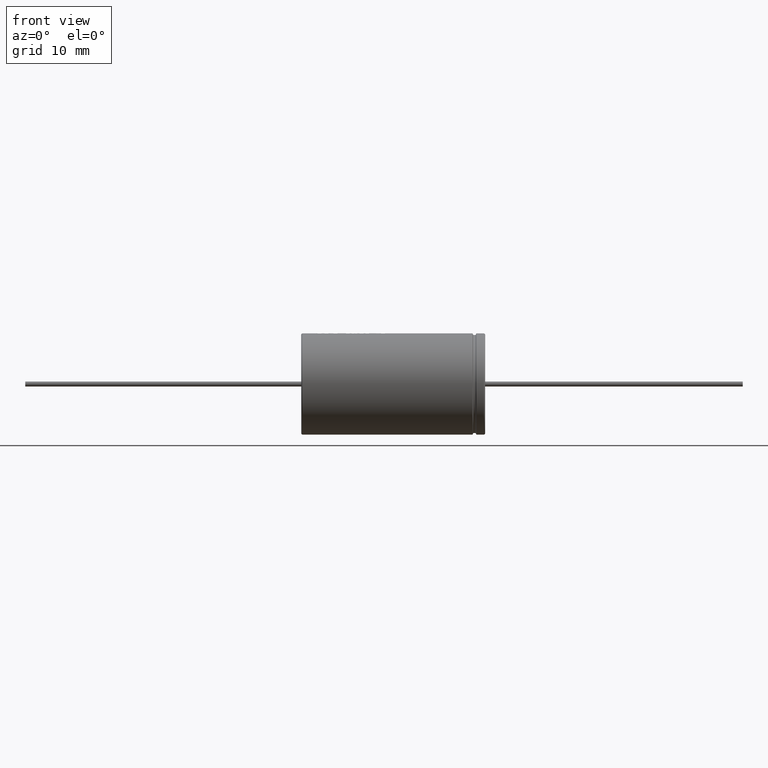
[diagram: clean part render]
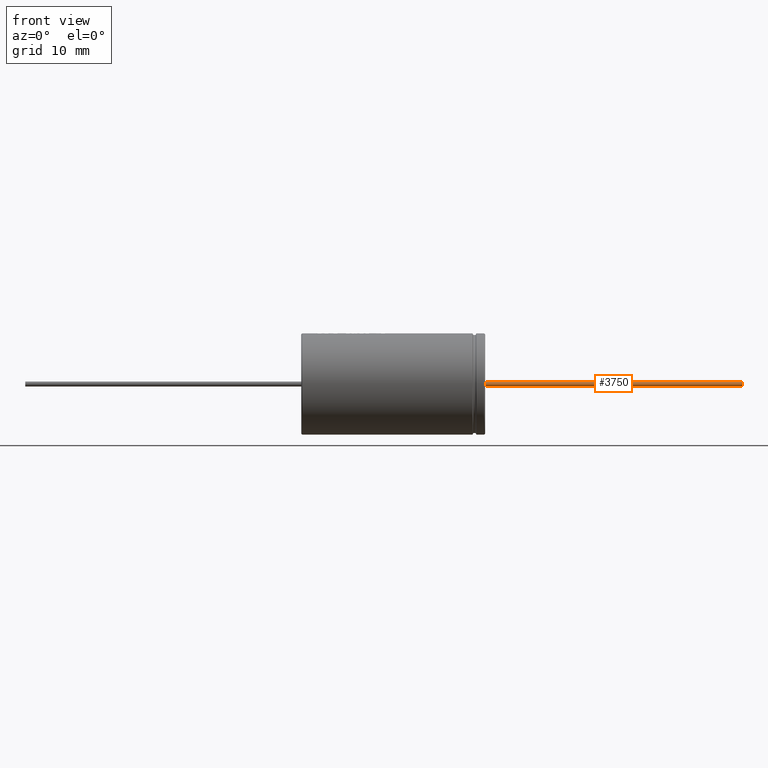
[diagram: same view with one face highlighted and labeled with its STEP entity id]
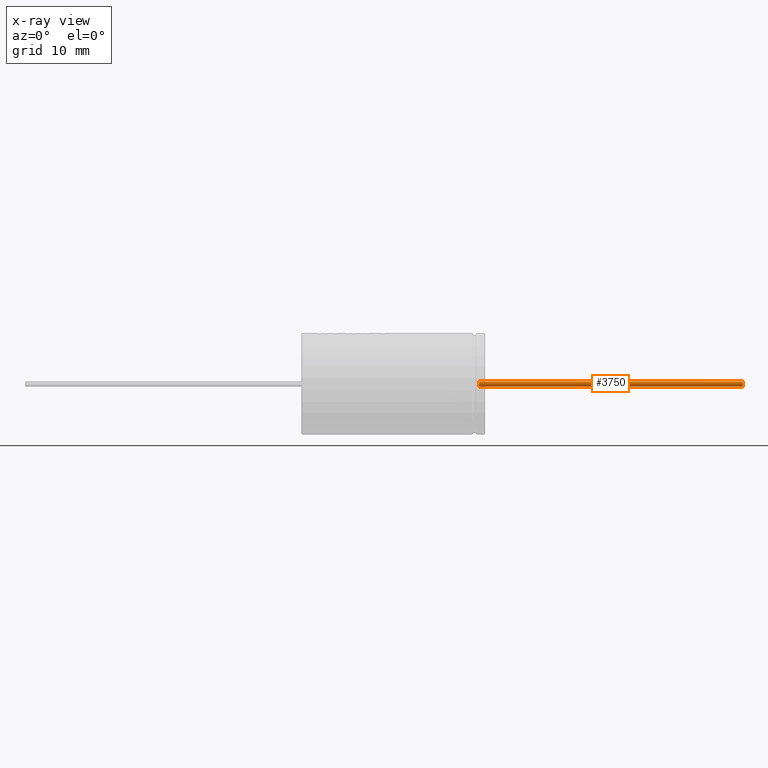
[diagram: x-ray of the same camera — body ghosted, the highlighted face saturated]
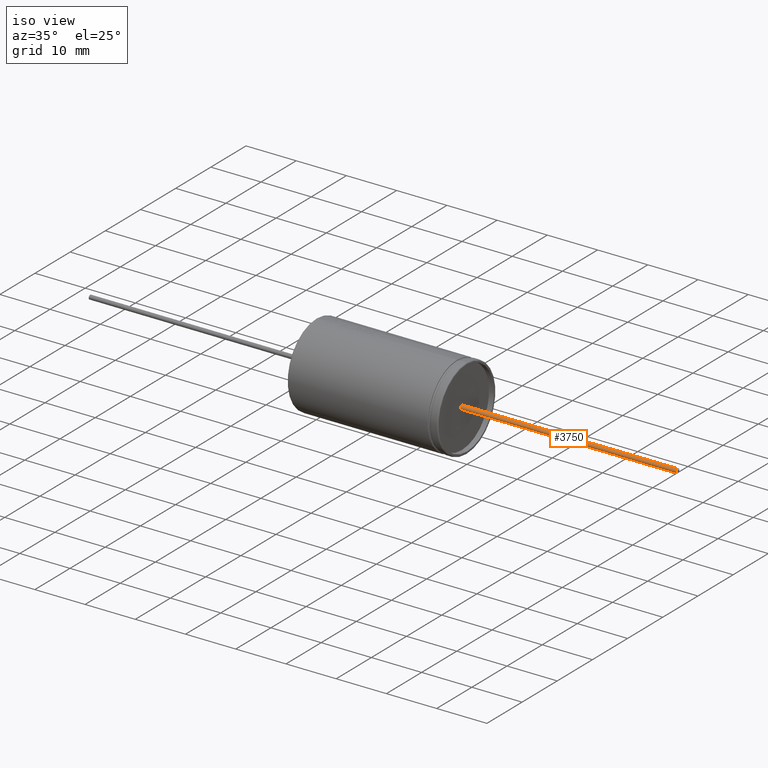
[diagram: same view with one face highlighted and labeled with its STEP entity id]
A machine part, front view. The second image highlights one B-rep face of the part: STEP entity #3750.
The next image is the same camera in x-ray: the body ghosted, the highlighted face saturated — about 0% of this face is hidden behind the body in this view.
A second angle (iso view) of the same face is appended — the face is thin or edge-on in the first view.
In plain terms, the highlighted cylindrical surface (edge-blend (fillet) strip) has radius 0.415 mm, axis along (-1, -0, -0).
Its self-contained STEP definition (entity closure, byte-faithful):
#85 = ORIENTED_EDGE ( 'NONE', *, *, #681, .F. ) ;
#97 = DIRECTION ( 'NONE',  ( -1.000000000000000000, -0.0000000000000000000, -0.0000000000000000000 ) ) ;
#192 = LINE ( 'NONE', #1091, #1242 ) ;
#681 = EDGE_CURVE ( 'NONE', #842, #3516, #3765, .T. ) ;
#800 = CARTESIAN_POINT ( 'NONE',  ( 72.00000000000000000, 5.082284216461516300E-017, -0.4150000000000000400 ) ) ;
#833 = FACE_OUTER_BOUND ( 'NONE', #2564, .T. ) ;
#842 = VERTEX_POINT ( 'NONE', #1435 ) ;
#924 = DIRECTION ( 'NONE',  ( 0.0000000000000000000, 0.0000000000000000000, -1.000000000000000000 ) ) ;
#953 = AXIS2_PLACEMENT_3D ( 'NONE', #2365, #2409, #924 ) ;
#989 = CYLINDRICAL_SURFACE ( 'NONE', #1212, 0.4150000000000000400 ) ;
#1002 = EDGE_CURVE ( 'NONE', #1877, #1520, #4512, .T. ) ;
#1091 = CARTESIAN_POINT ( 'NONE',  ( 72.00000000000000000, 5.082284216461516300E-017, -0.4150000000000000400 ) ) ;
#1117 = EDGE_CURVE ( 'NONE', #842, #1877, #4741, .T. ) ;
#1212 = AXIS2_PLACEMENT_3D ( 'NONE', #3198, #3549, #1721 ) ;
#1242 = VECTOR ( 'NONE', #97, 1000.000000000000000 ) ;
#1290 = CARTESIAN_POINT ( 'NONE',  ( 72.00000000000000000, 0.0000000000000000000, 0.4150000000000000400 ) ) ;
#1374 = DIRECTION ( 'NONE',  ( 1.000000000000000000, 0.0000000000000000000, 0.0000000000000000000 ) ) ;
#1435 = CARTESIAN_POINT ( 'NONE',  ( 72.00000000000000000, 0.0000000000000000000, 0.4150000000000000400 ) ) ;
#1443 = EDGE_CURVE ( 'NONE', #3516, #1520, #192, .T. ) ;
#1520 = VERTEX_POINT ( 'NONE', #4500 ) ;
#1721 = DIRECTION ( 'NONE',  ( 0.0000000000000000000, 0.0000000000000000000, 1.000000000000000000 ) ) ;
#1801 = ORIENTED_EDGE ( 'NONE', *, *, #1117, .T. ) ;
#1805 = AXIS2_PLACEMENT_3D ( 'NONE', #4336, #1374, #4758 ) ;
#1877 = VERTEX_POINT ( 'NONE', #4562 ) ;
#2365 = CARTESIAN_POINT ( 'NONE',  ( 28.99999999999999600, 0.0000000000000000000, 0.0000000000000000000 ) ) ;
#2409 = DIRECTION ( 'NONE',  ( 1.000000000000000000, 0.0000000000000000000, 0.0000000000000000000 ) ) ;
#2504 = ORIENTED_EDGE ( 'NONE', *, *, #1002, .T. ) ;
#2564 = EDGE_LOOP ( 'NONE', ( #4722, #85, #1801, #2504 ) ) ;
#2889 = VECTOR ( 'NONE', #3504, 1000.000000000000000 ) ;
#3198 = CARTESIAN_POINT ( 'NONE',  ( 72.00000000000000000, 0.0000000000000000000, 0.0000000000000000000 ) ) ;
#3504 = DIRECTION ( 'NONE',  ( -1.000000000000000000, -0.0000000000000000000, -0.0000000000000000000 ) ) ;
#3516 = VERTEX_POINT ( 'NONE', #800 ) ;
#3549 = DIRECTION ( 'NONE',  ( -1.000000000000000000, -0.0000000000000000000, -0.0000000000000000000 ) ) ;
#3750 = ADVANCED_FACE ( 'NONE', ( #833 ), #989, .T. ) ;
#3765 = CIRCLE ( 'NONE', #1805, 0.4150000000000000400 ) ;
#4336 = CARTESIAN_POINT ( 'NONE',  ( 72.00000000000000000, 0.0000000000000000000, 0.0000000000000000000 ) ) ;
#4500 = CARTESIAN_POINT ( 'NONE',  ( 28.99999999999999600, 5.082284216461516300E-017, -0.4150000000000000400 ) ) ;
#4512 = CIRCLE ( 'NONE', #953, 0.4150000000000000400 ) ;
#4562 = CARTESIAN_POINT ( 'NONE',  ( 28.99999999999999600, 0.0000000000000000000, 0.4150000000000000400 ) ) ;
#4722 = ORIENTED_EDGE ( 'NONE', *, *, #1443, .F. ) ;
#4741 = LINE ( 'NONE', #1290, #2889 ) ;
#4758 = DIRECTION ( 'NONE',  ( 0.0000000000000000000, 0.0000000000000000000, -1.000000000000000000 ) ) ;